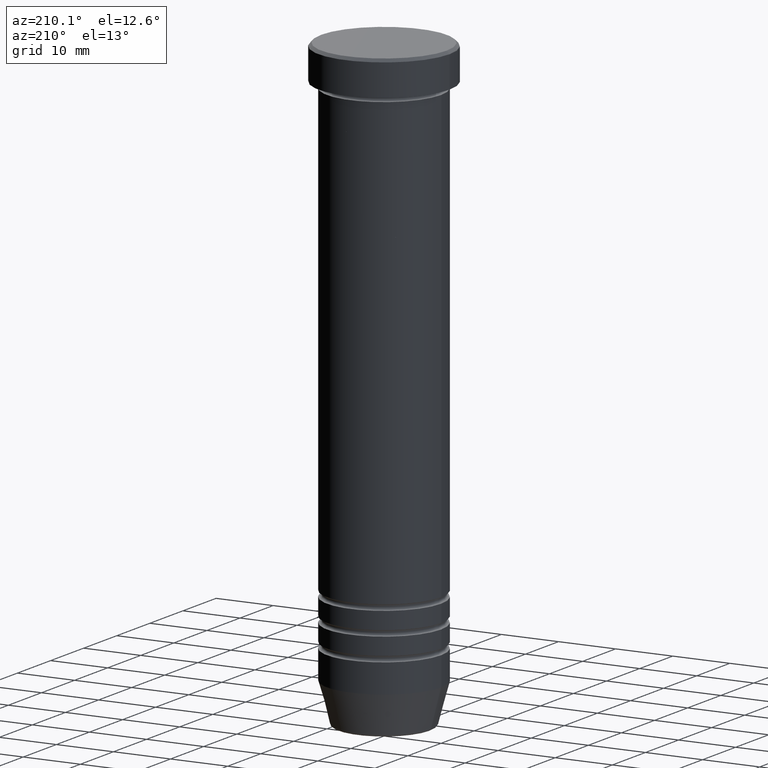
[diagram: clean part render]
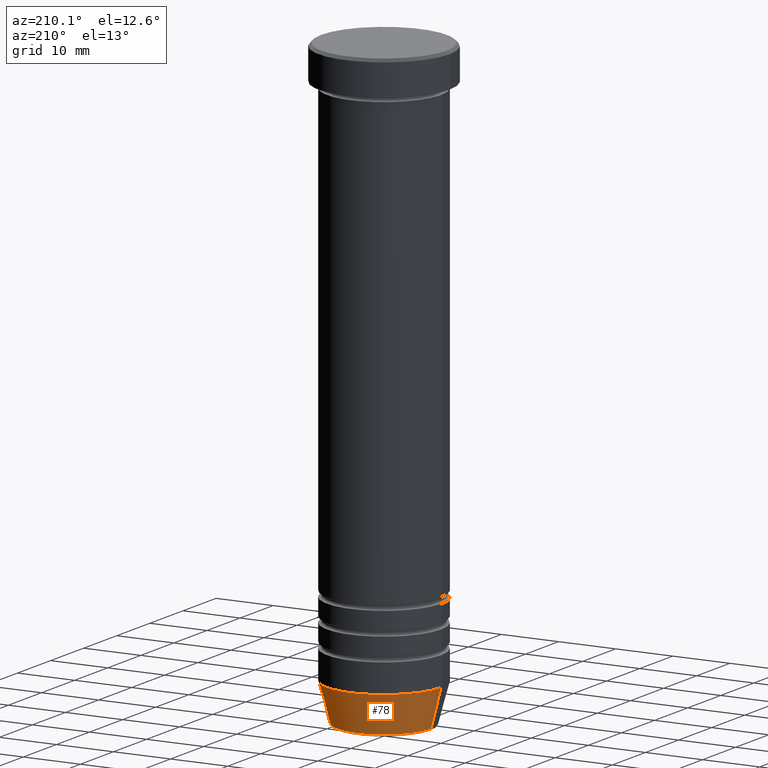
[diagram: same view with one face highlighted and labeled with its STEP entity id]
A machine part, auxiliary view. The second image highlights one B-rep face of the part: STEP entity #78.
In plain terms, the highlighted conical surface has half-angle 15 deg.
Its self-contained STEP definition (entity closure, byte-faithful):
#6 = FACE_OUTER_BOUND ( 'NONE', #249, .T. ) ;
#31 = DIRECTION ( 'NONE',  ( -0.000000000000000000, -0.000000000000000000, 1.000000000000000000 ) ) ;
#65 = VERTEX_POINT ( 'NONE', #597 ) ;
#78 = ADVANCED_FACE ( 'NONE', ( #6 ), #779, .T. ) ;
#141 = DIRECTION ( 'NONE',  ( 1.000000000000000000, 0.000000000000000000, 0.000000000000000000 ) ) ;
#148 = LINE ( 'NONE', #1048, #1055 ) ;
#158 = DIRECTION ( 'NONE',  ( -1.000000000000000000, 0.000000000000000000, 0.000000000000000000 ) ) ;
#165 = CARTESIAN_POINT ( 'NONE',  ( -8.124355652982135467, 9.949466145559276583E-16, -105.9999999999999858 ) ) ;
#179 = DIRECTION ( 'NONE',  ( 1.000000000000000000, 0.000000000000000000, 0.000000000000000000 ) ) ;
#182 = LINE ( 'NONE', #165, #253 ) ;
#249 = EDGE_LOOP ( 'NONE', ( #574, #844, #572, #987 ) ) ;
#253 = VECTOR ( 'NONE', #261, 1000.000000000000000 ) ;
#261 = DIRECTION ( 'NONE',  ( -0.2588190451025213501, 3.169619151431772337E-17, 0.9659258262890680902 ) ) ;
#264 = DIRECTION ( 'NONE',  ( -0.000000000000000000, -0.000000000000000000, 1.000000000000000000 ) ) ;
#315 = CARTESIAN_POINT ( 'NONE',  ( -10.00000000000000000, 1.224646799147353256E-15, -98.99999999999997158 ) ) ;
#383 = CIRCLE ( 'NONE', #440, 10.00000000000000000 ) ;
#420 = EDGE_CURVE ( 'NONE', #1005, #808, #148, .T. ) ;
#439 = CIRCLE ( 'NONE', #664, 8.223655072137187716 ) ;
#440 = AXIS2_PLACEMENT_3D ( 'NONE', #1097, #31, #141 ) ;
#572 = ORIENTED_EDGE ( 'NONE', *, *, #1083, .F. ) ;
#574 = ORIENTED_EDGE ( 'NONE', *, *, #719, .T. ) ;
#597 = CARTESIAN_POINT ( 'NONE',  ( -8.223655072137187716, 1.115877042642911856E-15, -105.6294095225512422 ) ) ;
#611 = CARTESIAN_POINT ( 'NONE',  ( 8.223655072137187716, 0.000000000000000000, -105.6294095225512422 ) ) ;
#664 = AXIS2_PLACEMENT_3D ( 'NONE', #1144, #861, #158 ) ;
#670 = DIRECTION ( 'NONE',  ( 0.2588190451025213501, 0.000000000000000000, 0.9659258262890680902 ) ) ;
#686 = CARTESIAN_POINT ( 'NONE',  ( 0.000000000000000000, 0.000000000000000000, -105.9999999999999858 ) ) ;
#719 = EDGE_CURVE ( 'NONE', #1005, #65, #439, .T. ) ;
#779 = CONICAL_SURFACE ( 'NONE', #934, 8.124355652982135467, 0.2617993877991500740 ) ;
#808 = VERTEX_POINT ( 'NONE', #964 ) ;
#822 = EDGE_CURVE ( 'NONE', #65, #943, #182, .T. ) ;
#844 = ORIENTED_EDGE ( 'NONE', *, *, #822, .T. ) ;
#861 = DIRECTION ( 'NONE',  ( -0.000000000000000000, -0.000000000000000000, 1.000000000000000000 ) ) ;
#934 = AXIS2_PLACEMENT_3D ( 'NONE', #686, #264, #179 ) ;
#943 = VERTEX_POINT ( 'NONE', #315 ) ;
#964 = CARTESIAN_POINT ( 'NONE',  ( 10.00000000000000000, 0.000000000000000000, -98.99999999999997158 ) ) ;
#987 = ORIENTED_EDGE ( 'NONE', *, *, #420, .F. ) ;
#1005 = VERTEX_POINT ( 'NONE', #611 ) ;
#1048 = CARTESIAN_POINT ( 'NONE',  ( 8.124355652982135467, 0.000000000000000000, -105.9999999999999858 ) ) ;
#1055 = VECTOR ( 'NONE', #670, 1000.000000000000000 ) ;
#1083 = EDGE_CURVE ( 'NONE', #808, #943, #383, .T. ) ;
#1097 = CARTESIAN_POINT ( 'NONE',  ( 0.000000000000000000, 0.000000000000000000, -98.99999999999997158 ) ) ;
#1144 = CARTESIAN_POINT ( 'NONE',  ( 0.000000000000000000, 0.000000000000000000, -105.6294095225512422 ) ) ;